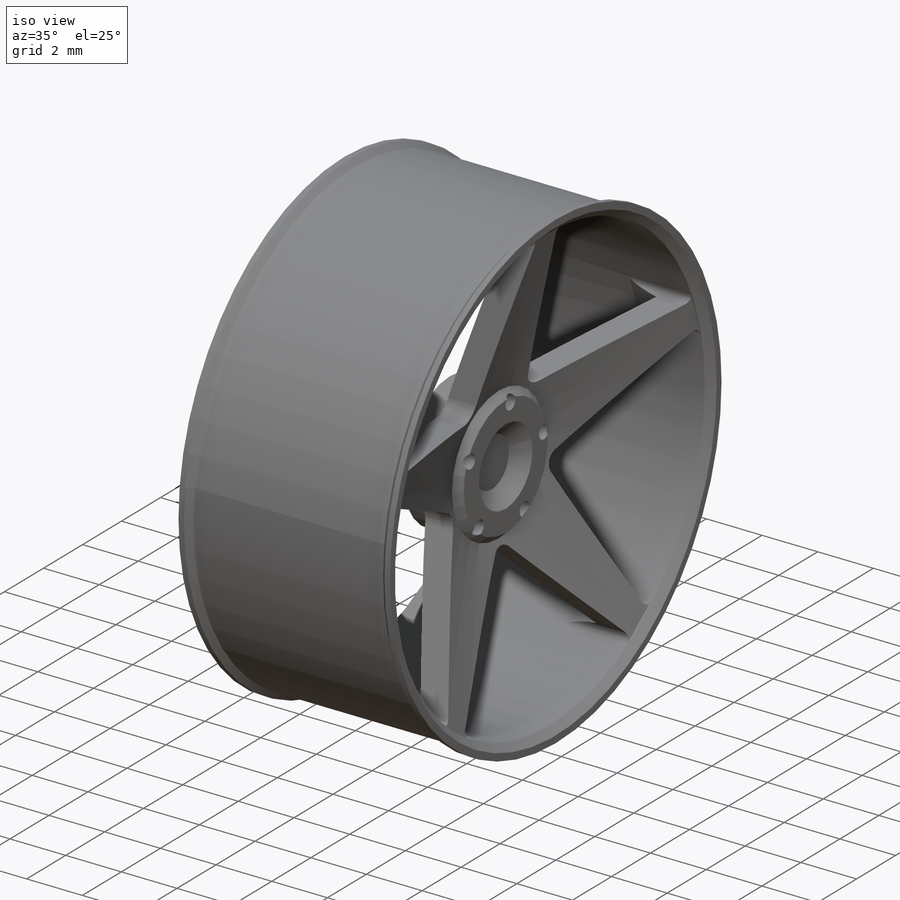
[diagram: iso view]
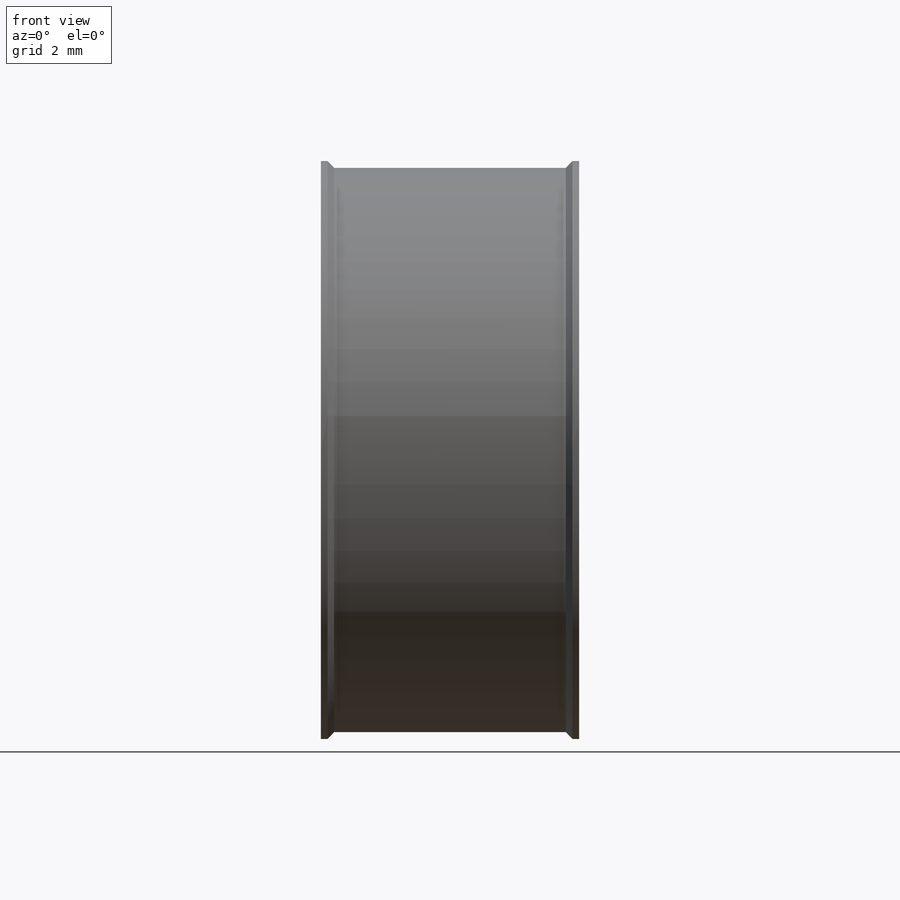
[diagram: front view]
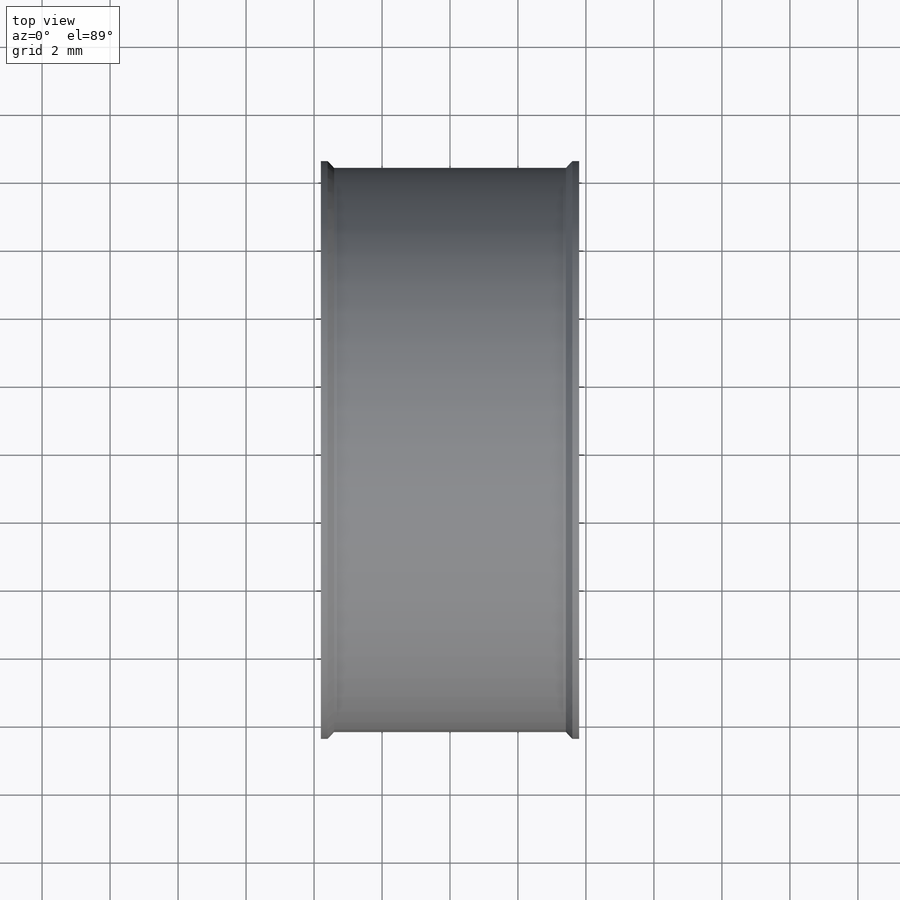
[diagram: top view]
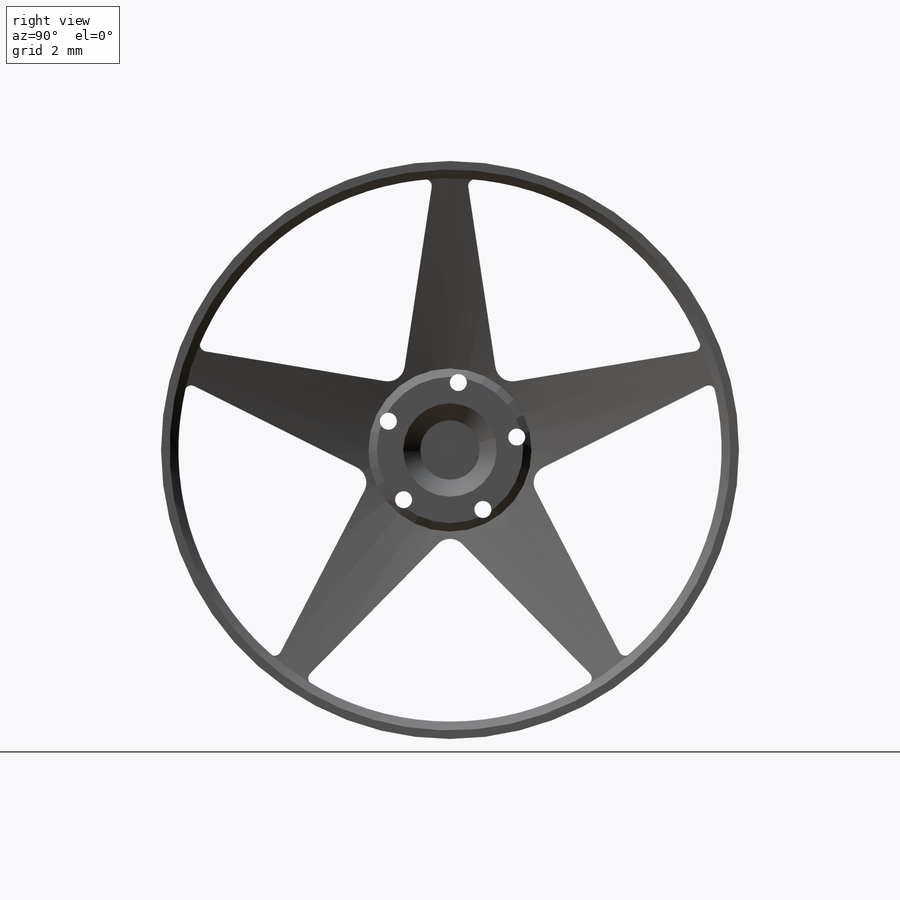
[diagram: right view]
SOLIDWORKS PART (.sldprt)
format: sldprt  version: not decoded by parser v0  size: 344,064 bytes
history: native  units: mm
features: sketch x6, cut_extrude x2, fillet x2, pattern_circular x2, chamfer x2, material x1, revolve x1, extrude x1, hole x1 (+11 scaffold rows collapsed)
feature tree (29):
  scaffold x11  (default folders/planes/origin — collapsed)
  material  "Material <not specified>"
  sketch  "Sketch1"  dims[c1.D1=7.6mm c1.D2=3.8mm c1.D3=1.0mm c1.D6=8.0mm c1.D7=~11.720783mm c2.D7=17.35deg c2.D8=0.3mm c2.D9=7.6mm c3.D9=15.0deg c3.D10=3.5mm c3.D4=0.3mm c3.D5=0.5mm c4.D4=0.3mm c4.D7=0.2mm c4.D8=0.2mm c4.D9=0.19mm c5.D8=0.19mm]
  revolve  "Revolve1"  Angle=360deg
  sketch  "Sketch2"  dims[D1=4.8mm]
  extrude  "Boss-Extrude1"  Depth=2mm
  sketch  "Sketch3"  dims[c1.D5=16.0mm c1.D1=~11.66274mm c2.D1=36.0deg c2.D2=~9.435355mm c3.D2=72.0deg c3.D3=0.5mm c3.D4=0.5mm]
  cut_extrude  "Cut-Extrude1"  [1 undecoded]
  fillet  "Fillet1"  Radius=0.5mm
  fillet  "Fillet2"  Radius=0.2mm
  pattern_circular  "CirPattern1"  Count=5 Angle=360deg
  hole  "Hole1"  Diameter=0.5mm Depth=100mm
  sketch  "3DSketch1"  dims[c1.D1=2.0mm c1.D2=~3.813528mm c2.D2=36.0deg]
  sketch  "Sketch7"  dims[Diameter=0.5mm Depth=100.0mm]
  pattern_circular  "CirPattern2"  Count=5 Angle=72deg
  chamfer  "Chamfer3"  Distance=0.25mm Angle=45deg
  sketch  "Sketch11"  dims[D1=2.75mm]
  cut_extrude  "Cut-Extrude2"  Depth=0.5mm
  chamfer  "Chamfer4"  Distance=0.25mm Angle=45deg
decode coverage: 16 of 17 modeling features carry decoded parameters
note: ~ marks probable driven/reference dimensions
note: 1 parameter value undecoded
note: suppression state not decoded; provenance and decode notes live in map.json
